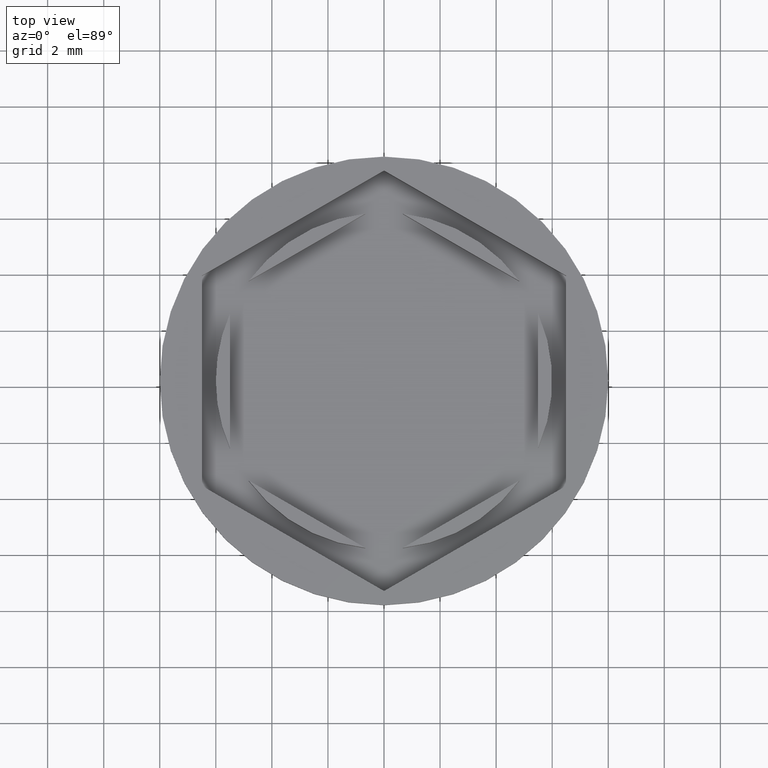
[diagram: clean part render]
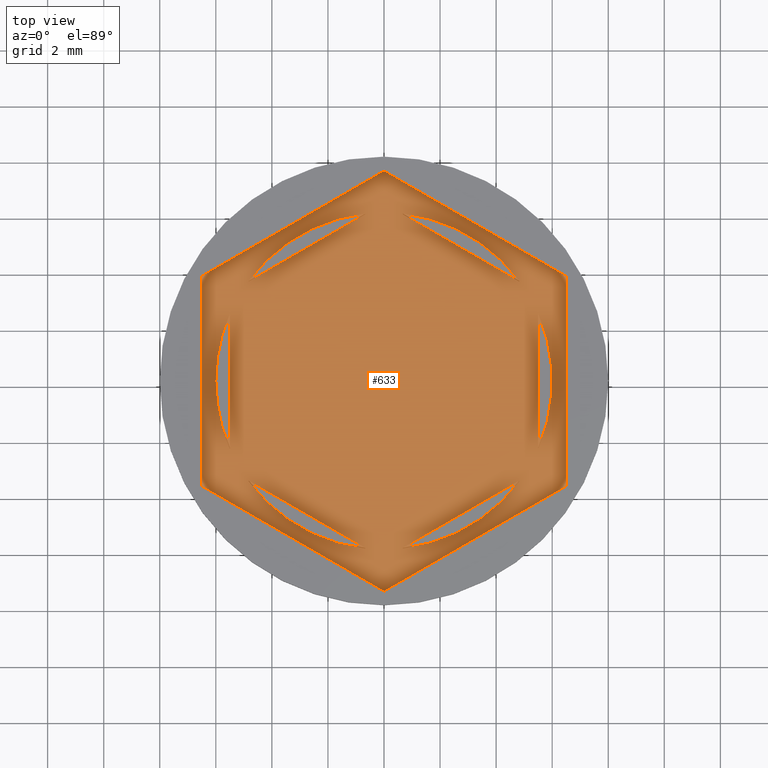
[diagram: same view with one face highlighted and labeled with its STEP entity id]
A machine part, top view. The second image highlights one B-rep face of the part: STEP entity #633.
In plain terms, the highlighted planar face has unit normal (0, 0, 1).
Its self-contained STEP definition (entity closure, byte-faithful):
#3 = CARTESIAN_POINT ( 'NONE',  ( -4.826655965729516495, 3.564181839986237499, -1.000000000000000888 ) ) ;
#4 = LINE ( 'NONE', #1123, #1735 ) ;
#6 = FACE_BOUND ( 'NONE', #1603, .T. ) ;
#15 = VECTOR ( 'NONE', #964, 1000.000000000000114 ) ;
#36 = LINE ( 'NONE', #1113, #1360 ) ;
#58 = CARTESIAN_POINT ( 'NONE',  ( 5.500000000000000888, 2.397915761656360445, -1.000000000000000888 ) ) ;
#67 = DIRECTION ( 'NONE',  ( 0.8660254037844385966, -0.4999999999999999445, 0.000000000000000000 ) ) ;
#74 = CARTESIAN_POINT ( 'NONE',  ( -5.500000000000001776, 2.397915761656359113, -1.000000000000000888 ) ) ;
#81 = VECTOR ( 'NONE', #656, 1000.000000000000000 ) ;
#111 = EDGE_LOOP ( 'NONE', ( #1377, #252 ) ) ;
#131 = EDGE_CURVE ( 'NONE', #1055, #1842, #4, .T. ) ;
#133 = DIRECTION ( 'NONE',  ( 1.000000000000000000, 0.000000000000000000, -0.000000000000000000 ) ) ;
#134 = EDGE_CURVE ( 'NONE', #1661, #942, #637, .T. ) ;
#142 = CARTESIAN_POINT ( 'NONE',  ( 0.000000000000000000, 0.000000000000000000, -1.000000000000000000 ) ) ;
#145 = EDGE_LOOP ( 'NONE', ( #1344, #476 ) ) ;
#157 = EDGE_CURVE ( 'NONE', #1384, #950, #36, .T. ) ;
#163 = CARTESIAN_POINT ( 'NONE',  ( 5.500000000000000888, -3.175426480542943963, -1.000000000000000888 ) ) ;
#167 = EDGE_LOOP ( 'NONE', ( #1750, #282 ) ) ;
#175 = CARTESIAN_POINT ( 'NONE',  ( 0.6733440342704833936, -5.962097601642594391, -1.000000000000000888 ) ) ;
#186 = CARTESIAN_POINT ( 'NONE',  ( 5.500000000000000888, -2.397915761656362221, -1.000000000000000888 ) ) ;
#217 = CARTESIAN_POINT ( 'NONE',  ( 0.000000000000000000, 0.000000000000000000, -1.000000000000000000 ) ) ;
#226 = CARTESIAN_POINT ( 'NONE',  ( -0.6733440342704841708, -5.962097601642594391, -1.000000000000000888 ) ) ;
#235 = CARTESIAN_POINT ( 'NONE',  ( -4.826655965729519160, -3.564181839986236611, -1.000000000000000888 ) ) ;
#252 = ORIENTED_EDGE ( 'NONE', *, *, #1671, .F. ) ;
#253 = VECTOR ( 'NONE', #1601, 1000.000000000000114 ) ;
#264 = EDGE_CURVE ( 'NONE', #1842, #352, #520, .T. ) ;
#275 = EDGE_CURVE ( 'NONE', #950, #1910, #1327, .T. ) ;
#282 = ORIENTED_EDGE ( 'NONE', *, *, #854, .F. ) ;
#289 = DIRECTION ( 'NONE',  ( 1.000000000000000000, 0.000000000000000000, 0.000000000000000000 ) ) ;
#294 = VERTEX_POINT ( 'NONE', #1789 ) ;
#300 = DIRECTION ( 'NONE',  ( 1.000000000000000000, 0.000000000000000000, 0.000000000000000000 ) ) ;
#305 = CIRCLE ( 'NONE', #702, 6.000000000000000888 ) ;
#322 = VERTEX_POINT ( 'NONE', #58 ) ;
#352 = VERTEX_POINT ( 'NONE', #1809 ) ;
#358 = VERTEX_POINT ( 'NONE', #226 ) ;
#363 = CIRCLE ( 'NONE', #1205, 6.000000000000000888 ) ;
#375 = ORIENTED_EDGE ( 'NONE', *, *, #131, .T. ) ;
#380 = CARTESIAN_POINT ( 'NONE',  ( 0.000000000000000000, 0.000000000000000000, -1.000000000000000000 ) ) ;
#416 = EDGE_LOOP ( 'NONE', ( #803, #1519, #375, #1890, #1281, #1346 ) ) ;
#449 = FACE_BOUND ( 'NONE', #145, .T. ) ;
#450 = VERTEX_POINT ( 'NONE', #235 ) ;
#462 = CIRCLE ( 'NONE', #735, 6.000000000000000888 ) ;
#476 = ORIENTED_EDGE ( 'NONE', *, *, #1463, .F. ) ;
#484 = CARTESIAN_POINT ( 'NONE',  ( -6.500000000000001776, 3.752776749732565698, -1.000000000000000000 ) ) ;
#495 = CARTESIAN_POINT ( 'NONE',  ( -5.500000000000001776, -3.175426480542942631, -1.000000000000000888 ) ) ;
#500 = DIRECTION ( 'NONE',  ( 0.8660254037844385966, 0.4999999999999999445, -0.000000000000000000 ) ) ;
#502 = ORIENTED_EDGE ( 'NONE', *, *, #953, .F. ) ;
#520 = LINE ( 'NONE', #1474, #936 ) ;
#540 = DIRECTION ( 'NONE',  ( -0.8660254037844384856, -0.5000000000000002220, 0.000000000000000000 ) ) ;
#542 = VERTEX_POINT ( 'NONE', #1537 ) ;
#552 = CARTESIAN_POINT ( 'NONE',  ( -3.394223061414856671E-17, -7.505553499465136724, -1.000000000000000000 ) ) ;
#555 = CARTESIAN_POINT ( 'NONE',  ( 0.000000000000000000, 0.000000000000000000, -1.000000000000000000 ) ) ;
#614 = CARTESIAN_POINT ( 'NONE',  ( 5.500000000000001776, 3.175426480542944851, -1.000000000000000888 ) ) ;
#621 = FACE_BOUND ( 'NONE', #1841, .T. ) ;
#622 = DIRECTION ( 'NONE',  ( 0.8660254037844387076, -0.4999999999999998335, 0.000000000000000000 ) ) ;
#625 = AXIS2_PLACEMENT_3D ( 'NONE', #142, #1545, #133 ) ;
#631 = AXIS2_PLACEMENT_3D ( 'NONE', #380, #1919, #1040 ) ;
#633 = ADVANCED_FACE ( 'NONE', ( #6, #1550, #1408, #449, #621, #1264, #916 ), #1254, .T. ) ;
#637 = LINE ( 'NONE', #1609, #798 ) ;
#649 = DIRECTION ( 'NONE',  ( 0.000000000000000000, 0.000000000000000000, 1.000000000000000000 ) ) ;
#654 = EDGE_CURVE ( 'NONE', #1394, #1889, #462, .T. ) ;
#656 = DIRECTION ( 'NONE',  ( -1.365740544306507381E-16, -1.000000000000000000, 0.000000000000000000 ) ) ;
#677 = DIRECTION ( 'NONE',  ( -0.8660254037844387076, 0.5000000000000001110, 0.000000000000000000 ) ) ;
#678 = LINE ( 'NONE', #1172, #1879 ) ;
#687 = CARTESIAN_POINT ( 'NONE',  ( 4.826655965729518272, -3.564181839986237055, -1.000000000000000888 ) ) ;
#702 = AXIS2_PLACEMENT_3D ( 'NONE', #1048, #1786, #1194 ) ;
#735 = AXIS2_PLACEMENT_3D ( 'NONE', #1383, #649, #1767 ) ;
#798 = VECTOR ( 'NONE', #500, 1000.000000000000114 ) ;
#803 = ORIENTED_EDGE ( 'NONE', *, *, #1932, .T. ) ;
#812 = LINE ( 'NONE', #1145, #253 ) ;
#813 = VERTEX_POINT ( 'NONE', #853 ) ;
#815 = CARTESIAN_POINT ( 'NONE',  ( 0.000000000000000000, 0.000000000000000000, -1.000000000000000000 ) ) ;
#819 = EDGE_CURVE ( 'NONE', #294, #1055, #1333, .T. ) ;
#853 = CARTESIAN_POINT ( 'NONE',  ( 4.826655965729516495, 3.564181839986238831, -1.000000000000000888 ) ) ;
#854 = EDGE_CURVE ( 'NONE', #1889, #1394, #1798, .T. ) ;
#893 = VERTEX_POINT ( 'NONE', #186 ) ;
#897 = VECTOR ( 'NONE', #540, 1000.000000000000114 ) ;
#912 = CARTESIAN_POINT ( 'NONE',  ( 0.6733440342704855031, 5.962097601642593503, -1.000000000000000888 ) ) ;
#916 = FACE_OUTER_BOUND ( 'NONE', #416, .T. ) ;
#936 = VECTOR ( 'NONE', #67, 1000.000000000000114 ) ;
#941 = DIRECTION ( 'NONE',  ( 0.8660254037844385966, 0.5000000000000001110, 0.000000000000000000 ) ) ;
#942 = VERTEX_POINT ( 'NONE', #1730 ) ;
#946 = EDGE_CURVE ( 'NONE', #450, #358, #1355, .T. ) ;
#950 = VERTEX_POINT ( 'NONE', #74 ) ;
#953 = EDGE_CURVE ( 'NONE', #813, #1600, #305, .T. ) ;
#958 = CARTESIAN_POINT ( 'NONE',  ( -6.000000000000000888, 0.000000000000000000, -1.000000000000000000 ) ) ;
#961 = DIRECTION ( 'NONE',  ( 1.155626614413199331E-16, 1.000000000000000000, 0.000000000000000000 ) ) ;
#964 = DIRECTION ( 'NONE',  ( -0.8660254037844387076, -0.4999999999999998890, 0.000000000000000000 ) ) ;
#992 = VERTEX_POINT ( 'NONE', #1217 ) ;
#1028 = EDGE_CURVE ( 'NONE', #542, #992, #678, .T. ) ;
#1032 = DIRECTION ( 'NONE',  ( 0.000000000000000000, 0.000000000000000000, 1.000000000000000000 ) ) ;
#1035 = AXIS2_PLACEMENT_3D ( 'NONE', #815, #1032, #1182 ) ;
#1040 = DIRECTION ( 'NONE',  ( 1.000000000000000000, 0.000000000000000000, 0.000000000000000000 ) ) ;
#1048 = CARTESIAN_POINT ( 'NONE',  ( 0.000000000000000000, 0.000000000000000000, -1.000000000000000000 ) ) ;
#1055 = VERTEX_POINT ( 'NONE', #484 ) ;
#1056 = CARTESIAN_POINT ( 'NONE',  ( 0.000000000000000000, 0.000000000000000000, -1.000000000000000000 ) ) ;
#1071 = VECTOR ( 'NONE', #622, 1000.000000000000114 ) ;
#1080 = ORIENTED_EDGE ( 'NONE', *, *, #1314, .F. ) ;
#1107 = ORIENTED_EDGE ( 'NONE', *, *, #1553, .F. ) ;
#1113 = CARTESIAN_POINT ( 'NONE',  ( -5.500000000000001776, 3.175426480542944851, -1.000000000000000888 ) ) ;
#1123 = CARTESIAN_POINT ( 'NONE',  ( -6.500000000000001776, 3.752776749732565698, -1.000000000000000000 ) ) ;
#1135 = CIRCLE ( 'NONE', #1458, 6.000000000000000888 ) ;
#1145 = CARTESIAN_POINT ( 'NONE',  ( 6.500000000000002665, 3.752776749732568806, -1.000000000000000000 ) ) ;
#1172 = CARTESIAN_POINT ( 'NONE',  ( 6.500000000000001776, -3.752776749732567918, -1.000000000000000000 ) ) ;
#1182 = DIRECTION ( 'NONE',  ( 1.000000000000000000, 0.000000000000000000, 0.000000000000000000 ) ) ;
#1194 = DIRECTION ( 'NONE',  ( 1.000000000000000000, 0.000000000000000000, 0.000000000000000000 ) ) ;
#1205 = AXIS2_PLACEMENT_3D ( 'NONE', #1056, #1700, #300 ) ;
#1217 = CARTESIAN_POINT ( 'NONE',  ( 6.500000000000002665, 3.752776749732568806, -1.000000000000000000 ) ) ;
#1254 = PLANE ( 'NONE',  #625 ) ;
#1264 = FACE_BOUND ( 'NONE', #1846, .T. ) ;
#1281 = ORIENTED_EDGE ( 'NONE', *, *, #1387, .T. ) ;
#1285 = ORIENTED_EDGE ( 'NONE', *, *, #1490, .F. ) ;
#1303 = DIRECTION ( 'NONE',  ( 0.000000000000000000, 0.000000000000000000, 1.000000000000000000 ) ) ;
#1314 = EDGE_CURVE ( 'NONE', #1910, #1384, #363, .T. ) ;
#1327 = CIRCLE ( 'NONE', #631, 6.000000000000000888 ) ;
#1333 = LINE ( 'NONE', #1636, #897 ) ;
#1336 = LINE ( 'NONE', #552, #1881 ) ;
#1344 = ORIENTED_EDGE ( 'NONE', *, *, #946, .F. ) ;
#1346 = ORIENTED_EDGE ( 'NONE', *, *, #1028, .T. ) ;
#1355 = CIRCLE ( 'NONE', #1610, 6.000000000000000888 ) ;
#1360 = VECTOR ( 'NONE', #1575, 1000.000000000000000 ) ;
#1377 = ORIENTED_EDGE ( 'NONE', *, *, #1909, .F. ) ;
#1383 = CARTESIAN_POINT ( 'NONE',  ( 0.000000000000000000, 0.000000000000000000, -1.000000000000000000 ) ) ;
#1384 = VERTEX_POINT ( 'NONE', #1628 ) ;
#1387 = EDGE_CURVE ( 'NONE', #352, #542, #1336, .T. ) ;
#1394 = VERTEX_POINT ( 'NONE', #175 ) ;
#1408 = FACE_BOUND ( 'NONE', #167, .T. ) ;
#1458 = AXIS2_PLACEMENT_3D ( 'NONE', #217, #1303, #1898 ) ;
#1463 = EDGE_CURVE ( 'NONE', #358, #450, #1876, .T. ) ;
#1474 = CARTESIAN_POINT ( 'NONE',  ( -6.500000000000001776, -3.752776749732568806, -1.000000000000000000 ) ) ;
#1490 = EDGE_CURVE ( 'NONE', #942, #1661, #1527, .T. ) ;
#1519 = ORIENTED_EDGE ( 'NONE', *, *, #819, .T. ) ;
#1527 = CIRCLE ( 'NONE', #1035, 6.000000000000000888 ) ;
#1529 = DIRECTION ( 'NONE',  ( 0.000000000000000000, 0.000000000000000000, 1.000000000000000000 ) ) ;
#1537 = CARTESIAN_POINT ( 'NONE',  ( 6.500000000000001776, -3.752776749732567918, -1.000000000000000000 ) ) ;
#1545 = DIRECTION ( 'NONE',  ( 0.000000000000000000, 0.000000000000000000, 1.000000000000000000 ) ) ;
#1550 = FACE_BOUND ( 'NONE', #111, .T. ) ;
#1553 = EDGE_CURVE ( 'NONE', #1600, #813, #1862, .T. ) ;
#1570 = ORIENTED_EDGE ( 'NONE', *, *, #134, .F. ) ;
#1575 = DIRECTION ( 'NONE',  ( 0.000000000000000000, 1.000000000000000000, 0.000000000000000000 ) ) ;
#1576 = VECTOR ( 'NONE', #677, 999.9999999999998863 ) ;
#1600 = VERTEX_POINT ( 'NONE', #912 ) ;
#1601 = DIRECTION ( 'NONE',  ( -0.8660254037844387076, 0.4999999999999998335, 0.000000000000000000 ) ) ;
#1603 = EDGE_LOOP ( 'NONE', ( #502, #1107 ) ) ;
#1609 = CARTESIAN_POINT ( 'NONE',  ( -8.673617379884035472E-16, 6.350852961085887038, -1.000000000000000888 ) ) ;
#1610 = AXIS2_PLACEMENT_3D ( 'NONE', #555, #1529, #289 ) ;
#1628 = CARTESIAN_POINT ( 'NONE',  ( -5.500000000000001776, -2.397915761656359113, -1.000000000000000888 ) ) ;
#1631 = CARTESIAN_POINT ( 'NONE',  ( -4.336808689942017736E-16, -6.350852961085885262, -1.000000000000000888 ) ) ;
#1636 = CARTESIAN_POINT ( 'NONE',  ( 0.000000000000000000, 7.505553499465135836, -1.000000000000000000 ) ) ;
#1661 = VERTEX_POINT ( 'NONE', #3 ) ;
#1663 = ORIENTED_EDGE ( 'NONE', *, *, #157, .F. ) ;
#1671 = EDGE_CURVE ( 'NONE', #322, #893, #1732, .T. ) ;
#1700 = DIRECTION ( 'NONE',  ( 0.000000000000000000, 0.000000000000000000, 1.000000000000000000 ) ) ;
#1730 = CARTESIAN_POINT ( 'NONE',  ( -0.6733440342704863912, 5.962097601642592615, -1.000000000000000888 ) ) ;
#1732 = LINE ( 'NONE', #163, #81 ) ;
#1735 = VECTOR ( 'NONE', #1745, 1000.000000000000000 ) ;
#1745 = DIRECTION ( 'NONE',  ( 0.000000000000000000, -1.000000000000000000, 0.000000000000000000 ) ) ;
#1750 = ORIENTED_EDGE ( 'NONE', *, *, #654, .F. ) ;
#1767 = DIRECTION ( 'NONE',  ( 1.000000000000000000, 0.000000000000000000, 0.000000000000000000 ) ) ;
#1786 = DIRECTION ( 'NONE',  ( 0.000000000000000000, 0.000000000000000000, 1.000000000000000000 ) ) ;
#1789 = CARTESIAN_POINT ( 'NONE',  ( 0.000000000000000000, 7.505553499465135836, -1.000000000000000000 ) ) ;
#1798 = LINE ( 'NONE', #1631, #15 ) ;
#1809 = CARTESIAN_POINT ( 'NONE',  ( -3.394223061414856671E-17, -7.505553499465136724, -1.000000000000000000 ) ) ;
#1841 = EDGE_LOOP ( 'NONE', ( #1970, #1663, #1080 ) ) ;
#1842 = VERTEX_POINT ( 'NONE', #1848 ) ;
#1846 = EDGE_LOOP ( 'NONE', ( #1285, #1570 ) ) ;
#1848 = CARTESIAN_POINT ( 'NONE',  ( -6.500000000000001776, -3.752776749732568806, -1.000000000000000000 ) ) ;
#1862 = LINE ( 'NONE', #614, #1071 ) ;
#1876 = LINE ( 'NONE', #495, #1576 ) ;
#1879 = VECTOR ( 'NONE', #961, 1000.000000000000000 ) ;
#1881 = VECTOR ( 'NONE', #941, 1000.000000000000114 ) ;
#1889 = VERTEX_POINT ( 'NONE', #687 ) ;
#1890 = ORIENTED_EDGE ( 'NONE', *, *, #264, .T. ) ;
#1898 = DIRECTION ( 'NONE',  ( 1.000000000000000000, 0.000000000000000000, 0.000000000000000000 ) ) ;
#1909 = EDGE_CURVE ( 'NONE', #893, #322, #1135, .T. ) ;
#1910 = VERTEX_POINT ( 'NONE', #958 ) ;
#1919 = DIRECTION ( 'NONE',  ( 0.000000000000000000, 0.000000000000000000, 1.000000000000000000 ) ) ;
#1932 = EDGE_CURVE ( 'NONE', #992, #294, #812, .T. ) ;
#1970 = ORIENTED_EDGE ( 'NONE', *, *, #275, .F. ) ;